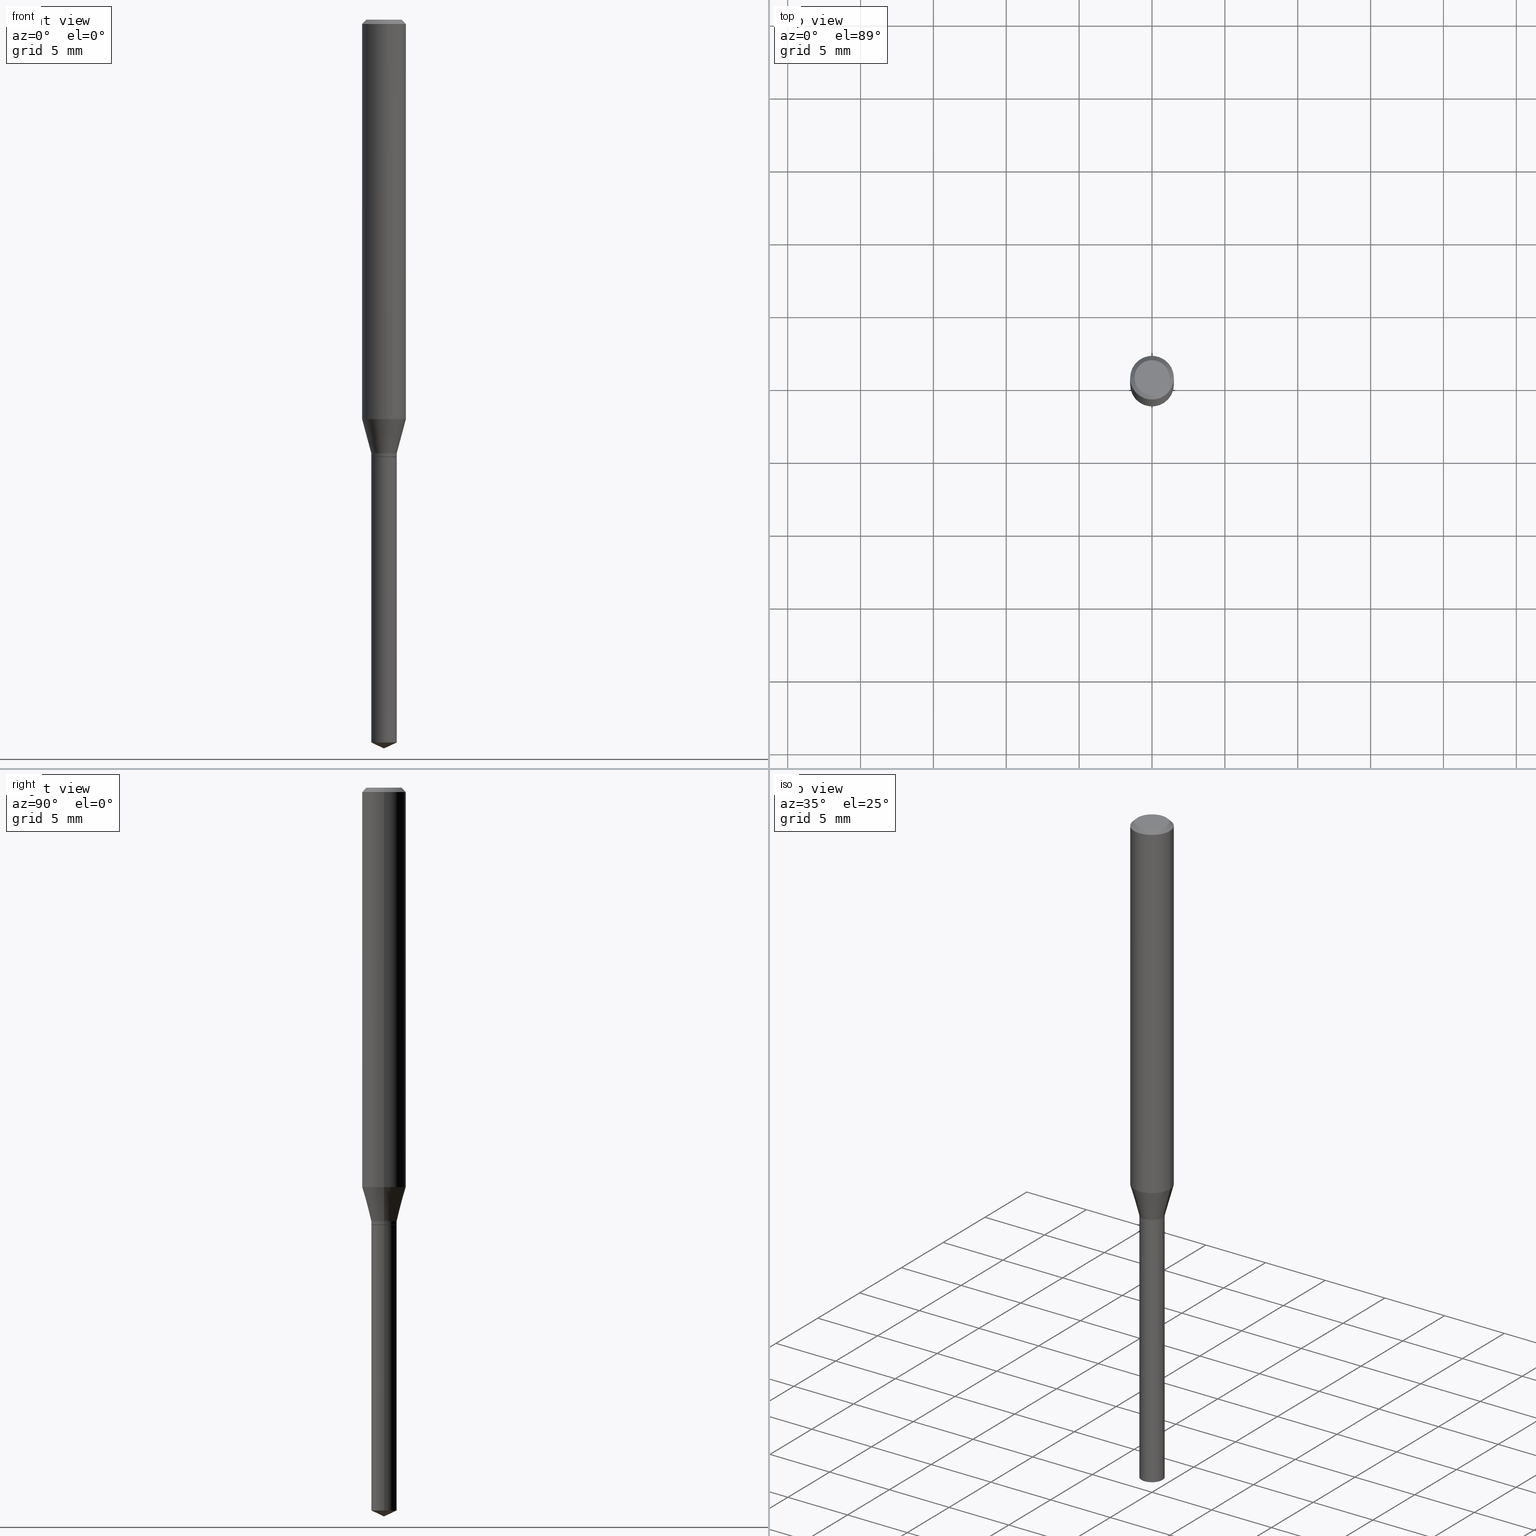
[diagram: canonical four-view strip — front | top / right | iso, engineering-drawing reading convention]
A machine part, canonical four-view strip (front | top / right | iso — engineering-drawing reading convention). The complete STEP part file that produces these views, byte-faithful:
ISO-10303-21;
HEADER;
FILE_DESCRIPTION (( 'STEP AP203' ),
    '1' );
FILE_NAME ('08177.STEP',
    '2024-04-24T13:43:20',
    ( '' ),
    ( '' ),
    'SwSTEP 2.0',
    'SolidWorks 2023',
    '' );
FILE_SCHEMA (( 'CONFIG_CONTROL_DESIGN' ));
ENDSEC;

DATA;
#1 = DIRECTION ( 'NONE',  ( -2.445468806185136597E-29, 3.491481338843145583E-15, 1.000000000000000000 ) ) ;
#2 = DIRECTION ( 'NONE',  ( 1.000000000000000000, -6.982962677686265133E-15, 0.000000000000000000 ) ) ;
#3 = DIRECTION ( 'NONE',  ( -1.000000000000000000, 6.982962677686266711E-15, 0.000000000000000000 ) ) ;
#4 = ADVANCED_FACE ( 'NONE', ( #274 ), #212, .T. ) ;
#5 = ORIENTED_EDGE ( 'NONE', *, *, #249, .F. ) ;
#6 = CARTESIAN_POINT ( 'NONE',  ( 0.03445000000000000839, -4.330135156433267846E-15, -1.171299999999999786 ) ) ;
#7 = CARTESIAN_POINT ( 'NONE',  ( 0.04724000000000000421, -3.852183633974369345E-16, -3.380025165621689721E-19 ) ) ;
#8 = ORIENTED_EDGE ( 'NONE', *, *, #97, .F. ) ;
#9 = CIRCLE ( 'NONE', #428, 0.03445000000000000145 ) ;
#10 = AXIS2_PLACEMENT_3D ( 'NONE', #110, #330, #488 ) ;
#11 = EDGE_LOOP ( 'NONE', ( #8, #378, #426, #129 ) ) ;
#12 = CC_DESIGN_PERSON_AND_ORGANIZATION_ASSIGNMENT ( #418, #235, ( #454 ) ) ;
#13 = CARTESIAN_POINT ( 'NONE',  ( -0.05905000000000006771, 4.195754854663396409E-16, -2.904631170795525045E-30 ) ) ;
#14 = AXIS2_PLACEMENT_3D ( 'NONE', #117, #396, #359 ) ;
#15 = EDGE_LOOP ( 'NONE', ( #466, #126, #25, #424 ) ) ;
#16 = PERSON_AND_ORGANIZATION ( #260, #104 ) ;
#17 = CARTESIAN_POINT ( 'NONE',  ( 0.05905000000000013710, -4.181368548848415927E-15, -1.079491550133805156 ) ) ;
#18 = DATE_AND_TIME ( #232, #328 ) ;
#19 = APPROVAL_PERSON_ORGANIZATION ( #463, #308, #349 ) ;
#20 = CC_DESIGN_APPROVAL ( #290, ( #329 ) ) ;
#21 = EDGE_LOOP ( 'NONE', ( #421, #357, #277, #172 ) ) ;
#22 = DATE_AND_TIME ( #203, #195 ) ;
#23 = PRODUCT_DEFINITION_SHAPE ( 'NONE', 'NONE',  #108 ) ;
#24 = EDGE_CURVE ( 'NONE', #58, #314, #431, .T. ) ;
#25 = ORIENTED_EDGE ( 'NONE', *, *, #376, .F. ) ;
#26 = VERTEX_POINT ( 'NONE', #134 ) ;
#27 = EDGE_CURVE ( 'NONE', #223, #226, #138, .T. ) ;
#28 = VERTEX_POINT ( 'NONE', #64 ) ;
#29 = EDGE_CURVE ( 'NONE', #28, #132, #239, .T. ) ;
#30 = DIRECTION ( 'NONE',  ( -2.445468806185136877E-29, 3.491481338843145188E-15, 1.000000000000000000 ) ) ;
#31 = PLANE ( 'NONE',  #460 ) ;
#32 = CARTESIAN_POINT ( 'NONE',  ( 0.03445000000000000145, -7.059201620864807415E-15, -1.952935701176560679 ) ) ;
#33 = DIRECTION ( 'NONE',  ( 1.000000000000000000, -6.982962677686266711E-15, 4.876176775795936353E-29 ) ) ;
#34 = EDGE_CURVE ( 'NONE', #165, #26, #266, .T. ) ;
#35 = AXIS2_PLACEMENT_3D ( 'NONE', #489, #111, #332 ) ;
#36 = DIRECTION ( 'NONE',  ( 2.445468806185136597E-29, -3.491481338843145583E-15, -1.000000000000000000 ) ) ;
#37 = EDGE_CURVE ( 'NONE', #226, #417, #107, .T. ) ;
#38 = FACE_OUTER_BOUND ( 'NONE', #447, .T. ) ;
#39 = DIRECTION ( 'NONE',  ( 1.000000000000000000, -6.982962677686265922E-15, 0.000000000000000000 ) ) ;
#40 =( NAMED_UNIT ( * ) SI_UNIT ( $, .STERADIAN. ) SOLID_ANGLE_UNIT ( ) );
#41 = DIRECTION ( 'NONE',  ( -0.7071067811864326647, 7.493145998869937642E-15, 0.7071067811866621478 ) ) ;
#42 = DIRECTION ( 'NONE',  ( 1.000000000000000000, 0.000000000000000000, 0.000000000000000000 ) ) ;
#43 = FACE_OUTER_BOUND ( 'NONE', #462, .T. ) ;
#44 = ORIENTED_EDGE ( 'NONE', *, *, #288, .T. ) ;
#45 = LENGTH_MEASURE_WITH_UNIT ( LENGTH_MEASURE( 0.02539999999999999897 ), #87 );
#46 = CARTESIAN_POINT ( 'NONE',  ( 2.639862912392659236E-29, -3.769024602731041007E-15, -1.079491550133805156 ) ) ;
#47 = AXIS2_PLACEMENT_3D ( 'NONE', #191, #400, #78 ) ;
#48 = VERTEX_POINT ( 'NONE', #17 ) ;
#49 = EDGE_CURVE ( 'NONE', #472, #229, #144, .T. ) ;
#50 = ORIENTED_EDGE ( 'NONE', *, *, #343, .F. ) ;
#51 =( CONVERSION_BASED_UNIT ( 'INCH', #45 ) LENGTH_UNIT ( ) NAMED_UNIT ( #465 ) );
#52 = AXIS2_PLACEMENT_3D ( 'NONE', #68, #436, #285 ) ;
#53 = ORIENTED_EDGE ( 'NONE', *, *, #65, .T. ) ;
#54 = COORDINATED_UNIVERSAL_TIME_OFFSET ( 5, 0, .BEHIND. ) ;
#55 = CLOSED_SHELL ( 'NONE', ( #70, #219, #112, #88, #155 ) ) ;
#56 = ORIENTED_EDGE ( 'NONE', *, *, #27, .T. ) ;
#57 = CALENDAR_DATE ( 2024, 24, 4 ) ;
#58 = VERTEX_POINT ( 'NONE', #406 ) ;
#59 = APPROVAL_ROLE ( '' ) ;
#60 = AXIS2_PLACEMENT_3D ( 'NONE', #190, #185, #160 ) ;
#61 = DIRECTION ( 'NONE',  ( 1.000000000000000000, -6.982962677686266711E-15, 0.000000000000000000 ) ) ;
#62 = ORIENTED_EDGE ( 'NONE', *, *, #37, .F. ) ;
#63 = AXIS2_PLACEMENT_3D ( 'NONE', #391, #234, #61 ) ;
#64 = CARTESIAN_POINT ( 'NONE',  ( 0.03395000000000000795, -4.362605932884510179E-15, -1.181600000000000206 ) ) ;
#65 = EDGE_CURVE ( 'NONE', #205, #26, #367, .T. ) ;
#66 = VECTOR ( 'NONE', #41, 39.37007874015748854 ) ;
#67 = FACE_OUTER_BOUND ( 'NONE', #135, .T. ) ;
#68 = CARTESIAN_POINT ( 'NONE',  ( 0.000000000000000000, 0.000000000000000000, 0.000000000000000000 ) ) ;
#69 = AXIS2_PLACEMENT_3D ( 'NONE', #208, #94, #174 ) ;
#70 = ADVANCED_FACE ( 'NONE', ( #120 ), #211, .T. ) ;
#71 = CARTESIAN_POINT ( 'NONE',  ( 0.03445000000000001533, -4.364351673553931682E-15, -1.181100000000000039 ) ) ;
#72 = VECTOR ( 'NONE', #227, 39.37007874015748854 ) ;
#73 = DIRECTION ( 'NONE',  ( 1.000000000000000000, -6.982962677686264344E-15, 0.000000000000000000 ) ) ;
#74 = CARTESIAN_POINT ( 'NONE',  ( 4.132873053354867254E-48, -5.900647395337818946E-34, -1.690012582823346072E-19 ) ) ;
#75 = LINE ( 'NONE', #334, #419 ) ;
#76 = DIRECTION ( 'NONE',  ( -1.000000000000000000, 6.982962677686265922E-15, -4.876176775795935793E-29 ) ) ;
#77 = ADVANCED_FACE ( 'NONE', ( #292 ), #306, .T. ) ;
#78 = DIRECTION ( 'NONE',  ( 1.000000000000000000, -6.982962677686266711E-15, 4.876185090822587894E-29 ) ) ;
#79 = VERTEX_POINT ( 'NONE', #7 ) ;
#80 = CIRCLE ( 'NONE', #295, 0.03395000000000000795 ) ;
#81 = PLANE ( 'NONE',  #368 ) ;
#82 = ORIENTED_EDGE ( 'NONE', *, *, #326, .T. ) ;
#83 = CARTESIAN_POINT ( 'NONE',  ( 0.000000000000000000, 0.000000000000000000, 0.000000000000000000 ) ) ;
#84 = DIRECTION ( 'NONE',  ( -2.445468806185136597E-29, 3.491481338843145583E-15, 1.000000000000000000 ) ) ;
#85 = CIRCLE ( 'NONE', #206, 0.03445000000000000839 ) ;
#86 = ORIENTED_EDGE ( 'NONE', *, *, #24, .T. ) ;
#87 =( LENGTH_UNIT ( ) NAMED_UNIT ( * ) SI_UNIT ( $, .METRE. ) );
#88 = ADVANCED_FACE ( 'NONE', ( #67 ), #220, .T. ) ;
#89 = CALENDAR_DATE ( 2024, 24, 4 ) ;
#90 =( GEOMETRIC_REPRESENTATION_CONTEXT ( 3 ) GLOBAL_UNCERTAINTY_ASSIGNED_CONTEXT ( ( #221 ) ) GLOBAL_UNIT_ASSIGNED_CONTEXT ( ( #51, #123, #40 ) ) REPRESENTATION_CONTEXT ( 'NONE', 'WORKASPACE' ) );
#91 = MANIFOLD_SOLID_BREP ( 'Body-Move/Copy2[2]', #189 ) ;
#92 = ORIENTED_EDGE ( 'NONE', *, *, #326, .F. ) ;
#93 = APPROVAL_ROLE ( '' ) ;
#94 = DIRECTION ( 'NONE',  ( -2.445468806185136597E-29, 3.491481338843145583E-15, 1.000000000000000000 ) ) ;
#95 = PERSON_AND_ORGANIZATION ( #260, #104 ) ;
#96 = ORIENTED_EDGE ( 'NONE', *, *, #356, .F. ) ;
#97 = EDGE_CURVE ( 'NONE', #79, #205, #446, .T. ) ;
#98 = CIRCLE ( 'NONE', #272, 0.05905000000000013016 ) ;
#99 = ORIENTED_EDGE ( 'NONE', *, *, #321, .F. ) ;
#100 = CC_DESIGN_DATE_AND_TIME_ASSIGNMENT ( #18, #310, ( #108 ) ) ;
#101 = DIRECTION ( 'NONE',  ( 0.9063077870366548217, -4.853149677051449787E-15, 0.4226182617406890052 ) ) ;
#102 = EDGE_LOOP ( 'NONE', ( #197, #82, #56, #279 ) ) ;
#103 = DIRECTION ( 'NONE',  ( 1.000000000000000000, -6.982962677686264344E-15, 0.000000000000000000 ) ) ;
#104 = ORGANIZATION ( 'UNSPECIFIED', 'UNSPECIFIED', '' ) ;
#105 = EDGE_CURVE ( 'NONE', #417, #226, #85, .T. ) ;
#106 = DIRECTION ( 'NONE',  ( 1.000000000000000000, -6.982962677686262766E-15, 0.000000000000000000 ) ) ;
#107 = CIRCLE ( 'NONE', #387, 0.03445000000000000839 ) ;
#108 = PRODUCT_DEFINITION ( 'UNKNOWN', '', #454, #468 ) ;
#109 = CARTESIAN_POINT ( 'NONE',  ( 2.864377612684650340E-29, -4.089572092186975977E-15, -1.171299999999999786 ) ) ;
#110 = CARTESIAN_POINT ( 'NONE',  ( 0.000000000000000000, 0.000000000000000000, 0.000000000000000000 ) ) ;
#111 = DIRECTION ( 'NONE',  ( -2.445468806185136597E-29, 3.491481338843145583E-15, 1.000000000000000000 ) ) ;
#112 = ADVANCED_FACE ( 'NONE', ( #335 ), #430, .T. ) ;
#113 = CIRCLE ( 'NONE', #149, 0.03445000000000000145 ) ;
#114 = DIRECTION ( 'NONE',  ( -2.445468806185136597E-29, 3.491481338843145583E-15, 1.000000000000000000 ) ) ;
#115 = CARTESIAN_POINT ( 'NONE',  ( 4.815128079378533515E-29, -6.874726756182153211E-15, -1.968999999999999861 ) ) ;
#116 = MECHANICAL_CONTEXT ( 'NONE', #199, 'mechanical' ) ;
#117 = CARTESIAN_POINT ( 'NONE',  ( -9.146317137672921654E-28, 1.305851684738629534E-13, 37.40107874015748024 ) ) ;
#118 = ORIENTED_EDGE ( 'NONE', *, *, #180, .F. ) ;
#119 = CARTESIAN_POINT ( 'NONE',  ( -0.03445000000000000839, -3.844790119717621600E-15, -1.171299999999999786 ) ) ;
#120 = FACE_OUTER_BOUND ( 'NONE', #395, .T. ) ;
#121 = ORIENTED_EDGE ( 'NONE', *, *, #432, .F. ) ;
#122 = CIRCLE ( 'NONE', #464, 0.05904999999999999832 ) ;
#123 =( NAMED_UNIT ( * ) PLANE_ANGLE_UNIT ( ) SI_UNIT ( $, .RADIAN. ) );
#124 = CARTESIAN_POINT ( 'NONE',  ( -0.03445000000000000145, -6.573856584149161170E-15, -1.952935701176560679 ) ) ;
#125 = LINE ( 'NONE', #6, #72 ) ;
#126 = ORIENTED_EDGE ( 'NONE', *, *, #194, .T. ) ;
#127 = CYLINDRICAL_SURFACE ( 'NONE', #383, 0.03445000000000001533 ) ;
#128 = ADVANCED_FACE ( 'NONE', ( #43 ), #81, .F. ) ;
#129 = ORIENTED_EDGE ( 'NONE', *, *, #65, .F. ) ;
#130 = DATE_AND_TIME ( #57, #490 ) ;
#131 = SHAPE_DEFINITION_REPRESENTATION ( #23, #423 ) ;
#132 = VERTEX_POINT ( 'NONE', #324 ) ;
#133 = SECURITY_CLASSIFICATION_LEVEL ( 'unclassified' ) ;
#134 = CARTESIAN_POINT ( 'NONE',  ( -0.05904999999999999832, -1.485554013205049086E-15, -0.01181000000000007044 ) ) ;
#135 = EDGE_LOOP ( 'NONE', ( #50, #450, #336, #475 ) ) ;
#136 = LOCAL_TIME ( 9, 43, 20.00000000000000000, #171 ) ;
#137 = CARTESIAN_POINT ( 'NONE',  ( 2.889565941388358239E-29, -4.125534349977062106E-15, -1.181600000000000206 ) ) ;
#138 = LINE ( 'NONE', #322, #315 ) ;
#139 = CYLINDRICAL_SURFACE ( 'NONE', #52, 0.03445000000000001533 ) ;
#140 = CIRCLE ( 'NONE', #35, 0.05905000000000013016 ) ;
#141 = CARTESIAN_POINT ( 'NONE',  ( 0.03445000000000000839, -4.330135156433267846E-15, -1.171299999999999786 ) ) ;
#142 = AXIS2_PLACEMENT_3D ( 'NONE', #109, #247, #73 ) ;
#143 = FACE_OUTER_BOUND ( 'NONE', #427, .T. ) ;
#144 = CIRCLE ( 'NONE', #471, 0.03445000000000000145 ) ;
#145 = CARTESIAN_POINT ( 'NONE',  ( -0.05905000000000013710, -3.349449117264700725E-15, -1.079491550133805156 ) ) ;
#146 = DIRECTION ( 'NONE',  ( 2.445468806185136597E-29, -3.491481338843145583E-15, -1.000000000000000000 ) ) ;
#147 = APPROVAL ( #201, 'UNSPECIFIED' ) ;
#148 = DIRECTION ( 'NONE',  ( -0.9063077870366548217, 7.915267918739013053E-15, 0.4226182617406890052 ) ) ;
#149 = AXIS2_PLACEMENT_3D ( 'NONE', #181, #114, #250 ) ;
#150 = DIRECTION ( 'NONE',  ( 1.000000000000000000, -6.982962677686267499E-15, 4.876176775795935793E-29 ) ) ;
#151 = CARTESIAN_POINT ( 'NONE',  ( 2.889565941388358239E-29, -4.125534349977062106E-15, -1.181600000000000206 ) ) ;
#152 = ORIENTED_EDGE ( 'NONE', *, *, #164, .T. ) ;
#153 = APPLICATION_PROTOCOL_DEFINITION ( 'international standard', 'config_control_design', 1994, #199 ) ;
#154 = CARTESIAN_POINT ( 'NONE',  ( 2.889565941388358239E-29, -4.125534349977062106E-15, -1.181600000000000206 ) ) ;
#155 = ADVANCED_FACE ( 'NONE', ( #410 ), #31, .F. ) ;
#156 = ORIENTED_EDGE ( 'NONE', *, *, #29, .F. ) ;
#157 = LINE ( 'NONE', #119, #312 ) ;
#158 = DIRECTION ( 'NONE',  ( 2.438088387897960049E-29, -3.491481338843145188E-15, -1.000000000000000000 ) ) ;
#159 = CC_DESIGN_PERSON_AND_ORGANIZATION_ASSIGNMENT ( #95, #352, ( #454 ) ) ;
#160 = DIRECTION ( 'NONE',  ( 1.000000000000000000, -6.982962677686265922E-15, 4.876176775795935793E-29 ) ) ;
#161 = ORIENTED_EDGE ( 'NONE', *, *, #27, .F. ) ;
#162 = EDGE_LOOP ( 'NONE', ( #156, #271 ) ) ;
#163 = PERSON_AND_ORGANIZATION_ROLE ( 'creator' ) ;
#164 = EDGE_CURVE ( 'NONE', #28, #223, #182, .T. ) ;
#165 = VERTEX_POINT ( 'NONE', #218 ) ;
#166 = PERSON_AND_ORGANIZATION ( #260, #104 ) ;
#167 = AXIS2_PLACEMENT_3D ( 'NONE', #380, #84, #225 ) ;
#168 = ORIENTED_EDGE ( 'NONE', *, *, #187, .F. ) ;
#169 = ORIENTED_EDGE ( 'NONE', *, *, #194, .F. ) ;
#170 = ADVANCED_FACE ( 'NONE', ( #481 ), #353, .T. ) ;
#171 = COORDINATED_UNIVERSAL_TIME_OFFSET ( 5, 0, .BEHIND. ) ;
#172 = ORIENTED_EDGE ( 'NONE', *, *, #252, .F. ) ;
#173 = EDGE_CURVE ( 'NONE', #256, #48, #140, .T. ) ;
#174 = DIRECTION ( 'NONE',  ( 1.000000000000000000, -6.982962677686263555E-15, 0.000000000000000000 ) ) ;
#175 = CARTESIAN_POINT ( 'NONE',  ( 2.888343206985265437E-29, -4.123788609307639813E-15, -1.181100000000000039 ) ) ;
#176 = CARTESIAN_POINT ( 'NONE',  ( 2.888098660104663766E-31, -4.123439461173779647E-17, -0.01181000000000007044 ) ) ;
#177 = FACE_OUTER_BOUND ( 'NONE', #21, .T. ) ;
#178 = VECTOR ( 'NONE', #439, 39.37007874015748854 ) ;
#179 = FACE_OUTER_BOUND ( 'NONE', #373, .T. ) ;
#180 = EDGE_CURVE ( 'NONE', #58, #207, #297, .T. ) ;
#181 = CARTESIAN_POINT ( 'NONE',  ( 4.775843337712576806E-29, -6.818638556618515546E-15, -1.952935701176560679 ) ) ;
#182 = LINE ( 'NONE', #331, #178 ) ;
#183 = DIRECTION ( 'NONE',  ( 2.438088387897960049E-29, -3.491481338843145188E-15, -1.000000000000000000 ) ) ;
#184 = CIRCLE ( 'NONE', #351, 0.03445000000000001533 ) ;
#185 = DIRECTION ( 'NONE',  ( -2.438088387897960049E-29, 3.491481338843145188E-15, 1.000000000000000000 ) ) ;
#186 = DIRECTION ( 'NONE',  ( -1.000000000000000000, 6.982962677686265922E-15, -4.876176775795935793E-29 ) ) ;
#187 = EDGE_CURVE ( 'NONE', #48, #256, #98, .T. ) ;
#188 = ORIENTED_EDGE ( 'NONE', *, *, #487, .T. ) ;
#189 = CLOSED_SHELL ( 'NONE', ( #4, #77, #394, #338, #282, #470, #246, #268, #228, #128, #408, #170 ) ) ;
#190 = CARTESIAN_POINT ( 'NONE',  ( -4.301196953650421114E-30, -8.879513126580439463E-15, -1.181600000000000206 ) ) ;
#191 = CARTESIAN_POINT ( 'NONE',  ( 8.265746106709734507E-48, -1.180129479067563789E-33, -3.380025165646692144E-19 ) ) ;
#192 = EDGE_LOOP ( 'NONE', ( #386, #393, #53, #384 ) ) ;
#193 = AXIS2_PLACEMENT_3D ( 'NONE', #364, #36, #486 ) ;
#194 = EDGE_CURVE ( 'NONE', #132, #415, #403, .T. ) ;
#195 = LOCAL_TIME ( 9, 43, 20.00000000000000000, #313 ) ;
#196 = PLANE ( 'NONE',  #60 ) ;
#197 = ORIENTED_EDGE ( 'NONE', *, *, #487, .F. ) ;
#198 = APPROVAL_DATE_TIME ( #130, #308 ) ;
#199 = APPLICATION_CONTEXT ( 'configuration controlled 3d designs of mechanical parts and assemblies' ) ;
#200 = EDGE_LOOP ( 'NONE', ( #269, #339, #318, #99 ) ) ;
#201 = APPROVAL_STATUS ( 'not_yet_approved' ) ;
#202 = DIRECTION ( 'NONE',  ( 1.000000000000000000, -6.982962677686263555E-15, 0.000000000000000000 ) ) ;
#203 = CALENDAR_DATE ( 2024, 24, 4 ) ;
#204 = EDGE_CURVE ( 'NONE', #132, #28, #80, .T. ) ;
#205 = VERTEX_POINT ( 'NONE', #414 ) ;
#206 = AXIS2_PLACEMENT_3D ( 'NONE', #445, #222, #371 ) ;
#207 = VERTEX_POINT ( 'NONE', #124 ) ;
#208 = CARTESIAN_POINT ( 'NONE',  ( 2.889565941388358239E-29, -4.125534349977062106E-15, -1.181600000000000206 ) ) ;
#209 = CARTESIAN_POINT ( 'NONE',  ( 0.03445000000000000145, -4.366097414223353186E-15, -1.181600000000000206 ) ) ;
#210 = AXIS2_PLACEMENT_3D ( 'NONE', #370, #340, #42 ) ;
#211 = CYLINDRICAL_SURFACE ( 'NONE', #253, 0.03445000000000000145 ) ;
#212 = CONICAL_SURFACE ( 'NONE', #346, 0.03395000000000000795, 0.7853981633972860754 ) ;
#213 = CYLINDRICAL_SURFACE ( 'NONE', #287, 0.05905000000000006771 ) ;
#214 = DIRECTION ( 'NONE',  ( -2.445468806185136597E-29, 3.491481338843145583E-15, 1.000000000000000000 ) ) ;
#215 = AXIS2_PLACEMENT_3D ( 'NONE', #175, #399, #402 ) ;
#216 = AXIS2_PLACEMENT_3D ( 'NONE', #325, #214, #103 ) ;
#217 = LINE ( 'NONE', #366, #243 ) ;
#218 = CARTESIAN_POINT ( 'NONE',  ( 0.05904999999999999832, -4.535783407291118600E-16, -0.01181000000000007044 ) ) ;
#219 = ADVANCED_FACE ( 'NONE', ( #263 ), #365, .T. ) ;
#220 = CYLINDRICAL_SURFACE ( 'NONE', #233, 0.03445000000000000145 ) ;
#221 = UNCERTAINTY_MEASURE_WITH_UNIT (LENGTH_MEASURE( 1.000000000000000082E-05 ), #51, 'distance_accuracy_value', 'NONE');
#222 = DIRECTION ( 'NONE',  ( -2.445468806185136597E-29, 3.491481338843145583E-15, 1.000000000000000000 ) ) ;
#223 = VERTEX_POINT ( 'NONE', #71 ) ;
#224 = CARTESIAN_POINT ( 'NONE',  ( -3.819384814789268933E-30, -8.810514885991131516E-15, -1.181599999999999984 ) ) ;
#225 = DIRECTION ( 'NONE',  ( 1.000000000000000000, -6.982962677686267499E-15, 0.000000000000000000 ) ) ;
#226 = VERTEX_POINT ( 'NONE', #141 ) ;
#227 = DIRECTION ( 'NONE',  ( 0.2588190451025211281, 1.565188264969622954E-15, 0.9659258262890679791 ) ) ;
#228 = ADVANCED_FACE ( 'NONE', ( #482 ), #434, .T. ) ;
#229 = VERTEX_POINT ( 'NONE', #209 ) ;
#230 = VECTOR ( 'NONE', #270, 39.37007874015748143 ) ;
#231 = DATE_AND_TIME ( #89, #320 ) ;
#232 = CALENDAR_DATE ( 2024, 24, 4 ) ;
#233 = AXIS2_PLACEMENT_3D ( 'NONE', #294, #337, #39 ) ;
#234 = DIRECTION ( 'NONE',  ( -2.445468806185136597E-29, 3.491481338843145583E-15, 1.000000000000000000 ) ) ;
#235 = PERSON_AND_ORGANIZATION_ROLE ( 'creator' ) ;
#236 = ORIENTED_EDGE ( 'NONE', *, *, #451, .T. ) ;
#237 = APPROVAL_PERSON_ORGANIZATION ( #166, #147, #59 ) ;
#238 = EDGE_LOOP ( 'NONE', ( #381, #316, #5 ) ) ;
#239 = CIRCLE ( 'NONE', #69, 0.03395000000000000795 ) ;
#240 = ORIENTED_EDGE ( 'NONE', *, *, #401, .T. ) ;
#241 = DIRECTION ( 'NONE',  ( -0.7071067811865453523, 2.468850131082234184E-15, -0.7071067811865496822 ) ) ;
#242 = CARTESIAN_POINT ( 'NONE',  ( 4.775843337712576806E-29, -6.818638556618515546E-15, -1.952935701176560679 ) ) ;
#243 = VECTOR ( 'NONE', #360, 39.37007874015748143 ) ;
#244 = CARTESIAN_POINT ( 'NONE',  ( 2.888343206985265437E-29, -4.123788609307639813E-15, -1.181100000000000039 ) ) ;
#245 = AXIS2_PLACEMENT_3D ( 'NONE', #176, #146, #3 ) ;
#246 = ADVANCED_FACE ( 'NONE', ( #179 ), #474, .T. ) ;
#247 = DIRECTION ( 'NONE',  ( -2.445468806185136597E-29, 3.491481338843145583E-15, 1.000000000000000000 ) ) ;
#248 = DIRECTION ( 'NONE',  ( 1.000000000000000000, -6.982962677686265922E-15, 0.000000000000000000 ) ) ;
#249 = EDGE_CURVE ( 'NONE', #314, #207, #9, .T. ) ;
#250 = DIRECTION ( 'NONE',  ( 1.000000000000000000, -6.982962677686280121E-15, 0.000000000000000000 ) ) ;
#251 = DIRECTION ( 'NONE',  ( -2.445468806185136597E-29, 3.491481338843145583E-15, 1.000000000000000000 ) ) ;
#252 = EDGE_CURVE ( 'NONE', #48, #165, #358, .T. ) ;
#253 = AXIS2_PLACEMENT_3D ( 'NONE', #443, #258, #248 ) ;
#254 = APPLICATION_PROTOCOL_DEFINITION ( 'international standard', 'config_control_design', 1994, #361 ) ;
#255 = DIRECTION ( 'NONE',  ( -2.445468806185136597E-29, 3.491481338843145583E-15, 1.000000000000000000 ) ) ;
#256 = VERTEX_POINT ( 'NONE', #145 ) ;
#257 = LINE ( 'NONE', #13, #333 ) ;
#258 = DIRECTION ( 'NONE',  ( -2.445468806185136597E-29, 3.491481338843145583E-15, 1.000000000000000000 ) ) ;
#259 = ORIENTED_EDGE ( 'NONE', *, *, #204, .T. ) ;
#260 = PERSON ( 'UNSPECIFIED', 'UNSPECIFIED', 'UNSPECIFIED', ('UNSPECIFIED'), ('UNSPECIFIED'), ('UNSPECIFIED') ) ;
#261 = CC_DESIGN_APPROVAL ( #147, ( #454 ) ) ;
#262 = CARTESIAN_POINT ( 'NONE',  ( -0.03445000000000001533, -3.861898378277953913E-15, -1.181100000000000039 ) ) ;
#263 = FACE_OUTER_BOUND ( 'NONE', #238, .T. ) ;
#264 = AXIS2_PLACEMENT_3D ( 'NONE', #154, #255, #375 ) ;
#265 = ORIENTED_EDGE ( 'NONE', *, *, #343, .T. ) ;
#266 = CIRCLE ( 'NONE', #63, 0.05904999999999999832 ) ;
#267 = DIRECTION ( 'NONE',  ( -2.445468806185136877E-29, 3.491481338843145188E-15, 1.000000000000000000 ) ) ;
#268 = ADVANCED_FACE ( 'NONE', ( #286 ), #484, .T. ) ;
#269 = ORIENTED_EDGE ( 'NONE', *, *, #485, .F. ) ;
#270 = DIRECTION ( 'NONE',  ( 0.7071067811865453523, -7.319954787623248157E-15, -0.7071067811865496822 ) ) ;
#271 = ORIENTED_EDGE ( 'NONE', *, *, #204, .F. ) ;
#272 = AXIS2_PLACEMENT_3D ( 'NONE', #46, #251, #2 ) ;
#273 = APPROVAL_DATE_TIME ( #22, #147 ) ;
#274 = FACE_OUTER_BOUND ( 'NONE', #15, .T. ) ;
#275 = PERSON_AND_ORGANIZATION_ROLE ( 'classification_officer' ) ;
#276 = DATE_AND_TIME ( #473, #136 ) ;
#277 = ORIENTED_EDGE ( 'NONE', *, *, #34, .F. ) ;
#278 = CC_DESIGN_PERSON_AND_ORGANIZATION_ASSIGNMENT ( #16, #275, ( #329 ) ) ;
#279 = ORIENTED_EDGE ( 'NONE', *, *, #105, .F. ) ;
#280 = CONICAL_SURFACE ( 'NONE', #142, 0.03445000000000000839, 0.2617993877991498519 ) ;
#281 = CC_DESIGN_SECURITY_CLASSIFICATION ( #329, ( #454 ) ) ;
#282 = ADVANCED_FACE ( 'NONE', ( #143 ), #139, .T. ) ;
#283 = ORIENTED_EDGE ( 'NONE', *, *, #37, .T. ) ;
#284 = DIRECTION ( 'NONE',  ( -2.445468806185136597E-29, 3.491481338843145583E-15, 1.000000000000000000 ) ) ;
#285 = DIRECTION ( 'NONE',  ( 1.000000000000000000, -6.982962677686267499E-15, 4.876176775795935793E-29 ) ) ;
#286 = FACE_OUTER_BOUND ( 'NONE', #200, .T. ) ;
#287 = AXIS2_PLACEMENT_3D ( 'NONE', #323, #362, #33 ) ;
#288 = EDGE_CURVE ( 'NONE', #205, #79, #397, .T. ) ;
#289 = DIRECTION ( 'NONE',  ( -2.445468806185136597E-29, 3.491481338843145583E-15, 1.000000000000000000 ) ) ;
#290 = APPROVAL ( #422, 'UNSPECIFIED' ) ;
#291 = CARTESIAN_POINT ( 'NONE',  ( 8.265746106709734507E-48, -1.180129479067563789E-33, -3.380025165646692144E-19 ) ) ;
#292 = FACE_OUTER_BOUND ( 'NONE', #11, .T. ) ;
#293 = CARTESIAN_POINT ( 'NONE',  ( 2.888098660104663766E-31, -4.123439461173779647E-17, -0.01181000000000007044 ) ) ;
#294 = CARTESIAN_POINT ( 'NONE',  ( 2.889565941388357118E-29, -4.125534349977060528E-15, -1.181599999999999984 ) ) ;
#295 = AXIS2_PLACEMENT_3D ( 'NONE', #151, #299, #449 ) ;
#296 = DIRECTION ( 'NONE',  ( -2.445468806185136877E-29, 3.491481338843145188E-15, 1.000000000000000000 ) ) ;
#297 = LINE ( 'NONE', #115, #303 ) ;
#298 = EDGE_LOOP ( 'NONE', ( #118, #86, #96 ) ) ;
#299 = DIRECTION ( 'NONE',  ( -2.445468806185136597E-29, 3.491481338843145583E-15, 1.000000000000000000 ) ) ;
#300 = ORIENTED_EDGE ( 'NONE', *, *, #49, .T. ) ;
#301 = CARTESIAN_POINT ( 'NONE',  ( 2.889565941388357678E-29, -4.125534349977061317E-15, -1.181600000000000206 ) ) ;
#302 = CARTESIAN_POINT ( 'NONE',  ( -0.05904999999999999832, 3.711095515056362547E-16, -0.01181000000000007044 ) ) ;
#303 = VECTOR ( 'NONE', #148, 39.37007874015748143 ) ;
#304 = EDGE_LOOP ( 'NONE', ( #455, #300 ) ) ;
#305 = ORIENTED_EDGE ( 'NONE', *, *, #97, .T. ) ;
#306 = CONICAL_SURFACE ( 'NONE', #245, 0.05904999999999999832, 0.7853981633974452814 ) ;
#307 = CARTESIAN_POINT ( 'NONE',  ( -0.03445000000000000839, -3.861898378277953913E-15, -1.171299999999999786 ) ) ;
#308 = APPROVAL ( #388, 'UNSPECIFIED' ) ;
#309 = ORIENTED_EDGE ( 'NONE', *, *, #376, .T. ) ;
#310 = DATE_TIME_ROLE ( 'creation_date' ) ;
#311 = DIRECTION ( 'NONE',  ( -2.445468806185136877E-29, 3.491481338843145188E-15, 1.000000000000000000 ) ) ;
#312 = VECTOR ( 'NONE', #409, 39.37007874015748854 ) ;
#313 = COORDINATED_UNIVERSAL_TIME_OFFSET ( 5, 0, .BEHIND. ) ;
#314 = VERTEX_POINT ( 'NONE', #32 ) ;
#315 = VECTOR ( 'NONE', #311, 39.37007874015748143 ) ;
#316 = ORIENTED_EDGE ( 'NONE', *, *, #180, .T. ) ;
#317 = PRODUCT ( '08177', '08177', '', ( #116 ) ) ;
#318 = ORIENTED_EDGE ( 'NONE', *, *, #252, .T. ) ;
#319 = AXIS2_PLACEMENT_3D ( 'NONE', #291, #437, #433 ) ;
#320 = LOCAL_TIME ( 9, 43, 20.00000000000000000, #425 ) ;
#321 = EDGE_CURVE ( 'NONE', #26, #165, #122, .T. ) ;
#322 = CARTESIAN_POINT ( 'NONE',  ( 0.03445000000000001533, -2.405630642462920172E-16, 1.679842899261700685E-30 ) ) ;
#323 = CARTESIAN_POINT ( 'NONE',  ( 0.000000000000000000, 0.000000000000000000, 0.000000000000000000 ) ) ;
#324 = CARTESIAN_POINT ( 'NONE',  ( -0.03395000000000000795, -3.881655864012396638E-15, -1.181600000000000206 ) ) ;
#325 = CARTESIAN_POINT ( 'NONE',  ( 2.864377612684650340E-29, -4.089572092186975977E-15, -1.171299999999999786 ) ) ;
#326 = EDGE_CURVE ( 'NONE', #415, #223, #184, .T. ) ;
#327 = DIRECTION ( 'NONE',  ( -2.445468806185136597E-29, 3.491481338843145583E-15, 1.000000000000000000 ) ) ;
#328 = LOCAL_TIME ( 9, 43, 20.00000000000000000, #390 ) ;
#329 = SECURITY_CLASSIFICATION ( '', '', #133 ) ;
#330 = DIRECTION ( 'NONE',  ( -2.445468806185136597E-29, 3.491481338843145583E-15, 1.000000000000000000 ) ) ;
#331 = CARTESIAN_POINT ( 'NONE',  ( 0.03395000000000000795, -4.362605932884510179E-15, -1.181600000000000206 ) ) ;
#332 = DIRECTION ( 'NONE',  ( 1.000000000000000000, -6.982962677686265133E-15, 0.000000000000000000 ) ) ;
#333 = VECTOR ( 'NONE', #405, 39.37007874015748143 ) ;
#334 = CARTESIAN_POINT ( 'NONE',  ( -0.03445000000000001533, 2.447819724693546230E-16, -1.694573138592815709E-30 ) ) ;
#335 = FACE_OUTER_BOUND ( 'NONE', #298, .T. ) ;
#336 = ORIENTED_EDGE ( 'NONE', *, *, #457, .T. ) ;
#337 = DIRECTION ( 'NONE',  ( -2.445468806185136597E-29, 3.491481338843145583E-15, 1.000000000000000000 ) ) ;
#338 = ADVANCED_FACE ( 'NONE', ( #38 ), #280, .T. ) ;
#339 = ORIENTED_EDGE ( 'NONE', *, *, #173, .T. ) ;
#340 = DIRECTION ( 'NONE',  ( 0.000000000000000000, 0.000000000000000000, 1.000000000000000000 ) ) ;
#341 = VECTOR ( 'NONE', #267, 39.37007874015748143 ) ;
#342 = ORIENTED_EDGE ( 'NONE', *, *, #451, .F. ) ;
#343 = EDGE_CURVE ( 'NONE', #207, #472, #217, .T. ) ;
#344 = DIRECTION ( 'NONE',  ( -2.445468806185136597E-29, 3.491481338843145583E-15, 1.000000000000000000 ) ) ;
#345 = EDGE_LOOP ( 'NONE', ( #169, #259, #152, #92 ) ) ;
#346 = AXIS2_PLACEMENT_3D ( 'NONE', #137, #429, #202 ) ;
#347 = PERSON_AND_ORGANIZATION ( #260, #104 ) ;
#348 = DIRECTION ( 'NONE',  ( 1.000000000000000000, -6.982962677686264344E-15, 0.000000000000000000 ) ) ;
#349 = APPROVAL_ROLE ( '' ) ;
#350 = DIRECTION ( 'NONE',  ( -2.445468806185136597E-29, 3.491481338843145583E-15, 1.000000000000000000 ) ) ;
#351 = AXIS2_PLACEMENT_3D ( 'NONE', #244, #441, #106 ) ;
#352 = PERSON_AND_ORGANIZATION_ROLE ( 'design_supplier' ) ;
#353 = CONICAL_SURFACE ( 'NONE', #264, 0.03395000000000000795, 0.7853981633972860754 ) ;
#354 = ORIENTED_EDGE ( 'NONE', *, *, #173, .F. ) ;
#355 = ORIENTED_EDGE ( 'NONE', *, *, #249, .T. ) ;
#356 = EDGE_CURVE ( 'NONE', #207, #314, #113, .T. ) ;
#357 = ORIENTED_EDGE ( 'NONE', *, *, #485, .T. ) ;
#358 = LINE ( 'NONE', #398, #392 ) ;
#359 = DIRECTION ( 'NONE',  ( 1.000000000000000000, -6.982962677686267499E-15, 0.000000000000000000 ) ) ;
#360 = DIRECTION ( 'NONE',  ( -2.445468806185136877E-29, 3.491481338843145188E-15, 1.000000000000000000 ) ) ;
#361 = APPLICATION_CONTEXT ( 'configuration controlled 3d designs of mechanical parts and assemblies' ) ;
#362 = DIRECTION ( 'NONE',  ( -2.445468806185136597E-29, 3.491481338843145583E-15, 1.000000000000000000 ) ) ;
#363 = CC_DESIGN_PERSON_AND_ORGANIZATION_ASSIGNMENT ( #467, #163, ( #108 ) ) ;
#364 = CARTESIAN_POINT ( 'NONE',  ( 2.888098660104663766E-31, -4.123439461173779647E-17, -0.01181000000000007044 ) ) ;
#365 = CONICAL_SURFACE ( 'NONE', #167, 84.42940631927650941, 1.134464013796325776 ) ;
#366 = CARTESIAN_POINT ( 'NONE',  ( -0.03445000000000000145, -3.880752377507706151E-15, -1.181599999999999984 ) ) ;
#367 = LINE ( 'NONE', #302, #377 ) ;
#368 = AXIS2_PLACEMENT_3D ( 'NONE', #74, #158, #76 ) ;
#369 = CARTESIAN_POINT ( 'NONE',  ( -0.03395000000000000795, -3.884305091186507839E-15, -1.181600000000000206 ) ) ;
#370 = CARTESIAN_POINT ( 'NONE',  ( 0.000000000000000000, 0.000000000000000000, 0.000000000000000000 ) ) ;
#371 = DIRECTION ( 'NONE',  ( 1.000000000000000000, -6.982962677686264344E-15, 0.000000000000000000 ) ) ;
#372 = CIRCLE ( 'NONE', #411, 0.03445000000000000145 ) ;
#373 = EDGE_LOOP ( 'NONE', ( #407, #458, #236, #354 ) ) ;
#374 = PERSON_AND_ORGANIZATION_ROLE ( 'design_owner' ) ;
#375 = DIRECTION ( 'NONE',  ( 1.000000000000000000, -6.982962677686263555E-15, 0.000000000000000000 ) ) ;
#376 = EDGE_CURVE ( 'NONE', #223, #415, #440, .T. ) ;
#377 = VECTOR ( 'NONE', #241, 39.37007874015748143 ) ;
#378 = ORIENTED_EDGE ( 'NONE', *, *, #438, .T. ) ;
#379 = LINE ( 'NONE', #382, #230 ) ;
#380 = CARTESIAN_POINT ( 'NONE',  ( -9.146317137672921654E-28, 1.305851684738629534E-13, 37.40107874015748024 ) ) ;
#381 = ORIENTED_EDGE ( 'NONE', *, *, #24, .F. ) ;
#382 = CARTESIAN_POINT ( 'NONE',  ( 0.05904999999999999832, -4.463468013801466955E-16, -0.01181000000000007044 ) ) ;
#383 = AXIS2_PLACEMENT_3D ( 'NONE', #83, #1, #150 ) ;
#384 = ORIENTED_EDGE ( 'NONE', *, *, #321, .T. ) ;
#385 = DATE_TIME_ROLE ( 'classification_date' ) ;
#386 = ORIENTED_EDGE ( 'NONE', *, *, #438, .F. ) ;
#387 = AXIS2_PLACEMENT_3D ( 'NONE', #477, #284, #348 ) ;
#388 = APPROVAL_STATUS ( 'not_yet_approved' ) ;
#389 = CARTESIAN_POINT ( 'NONE',  ( 2.889565941388357678E-29, -4.125534349977061317E-15, -1.181600000000000206 ) ) ;
#390 = COORDINATED_UNIVERSAL_TIME_OFFSET ( 5, 0, .BEHIND. ) ;
#391 = CARTESIAN_POINT ( 'NONE',  ( 2.888098660104663766E-31, -4.123439461173779647E-17, -0.01181000000000007044 ) ) ;
#392 = VECTOR ( 'NONE', #30, 39.37007874015748143 ) ;
#393 = ORIENTED_EDGE ( 'NONE', *, *, #288, .F. ) ;
#394 = ADVANCED_FACE ( 'NONE', ( #177 ), #213, .T. ) ;
#395 = EDGE_LOOP ( 'NONE', ( #355, #265, #121, #412 ) ) ;
#396 = DIRECTION ( 'NONE',  ( -2.445468806185136597E-29, 3.491481338843145583E-15, 1.000000000000000000 ) ) ;
#397 = CIRCLE ( 'NONE', #319, 0.04724000000000000421 ) ;
#398 = CARTESIAN_POINT ( 'NONE',  ( 0.05905000000000006771, -4.123439461173745257E-16, 2.879382386107503723E-30 ) ) ;
#399 = DIRECTION ( 'NONE',  ( -2.445468806185136597E-29, 3.491481338843145583E-15, 1.000000000000000000 ) ) ;
#400 = DIRECTION ( 'NONE',  ( -2.445468806185136597E-29, 3.491481338843145583E-15, 1.000000000000000000 ) ) ;
#401 = EDGE_CURVE ( 'NONE', #417, #256, #157, .T. ) ;
#402 = DIRECTION ( 'NONE',  ( 1.000000000000000000, -6.982962677686262766E-15, 0.000000000000000000 ) ) ;
#403 = LINE ( 'NONE', #369, #66 ) ;
#404 = MANIFOLD_SOLID_BREP ( 'Body-Move/Copy2[1]', #55 ) ;
#405 = DIRECTION ( 'NONE',  ( -2.445468806185136877E-29, 3.491481338843145188E-15, 1.000000000000000000 ) ) ;
#406 = CARTESIAN_POINT ( 'NONE',  ( 4.815128079378533515E-29, -6.874726756182153211E-15, -1.968999999999999861 ) ) ;
#407 = ORIENTED_EDGE ( 'NONE', *, *, #401, .F. ) ;
#408 = ADVANCED_FACE ( 'NONE', ( #456 ), #196, .F. ) ;
#409 = DIRECTION ( 'NONE',  ( -0.2588190451025211281, 5.211531920934547886E-15, 0.9659258262890679791 ) ) ;
#410 = FACE_OUTER_BOUND ( 'NONE', #304, .T. ) ;
#411 = AXIS2_PLACEMENT_3D ( 'NONE', #301, #344, #413 ) ;
#412 = ORIENTED_EDGE ( 'NONE', *, *, #457, .F. ) ;
#413 = DIRECTION ( 'NONE',  ( 1.000000000000000000, -6.982962677686265922E-15, 0.000000000000000000 ) ) ;
#414 = CARTESIAN_POINT ( 'NONE',  ( -0.04724000000000000421, 3.504923541997677355E-16, -3.380025165670481712E-19 ) ) ;
#415 = VERTEX_POINT ( 'NONE', #262 ) ;
#416 = CARTESIAN_POINT ( 'NONE',  ( 0.03445000000000000145, -4.366097414223352397E-15, -1.181599999999999984 ) ) ;
#417 = VERTEX_POINT ( 'NONE', #307 ) ;
#418 = PERSON_AND_ORGANIZATION ( #260, #104 ) ;
#419 = VECTOR ( 'NONE', #296, 39.37007874015748143 ) ;
#420 = CC_DESIGN_DATE_AND_TIME_ASSIGNMENT ( #231, #385, ( #329 ) ) ;
#421 = ORIENTED_EDGE ( 'NONE', *, *, #187, .T. ) ;
#422 = APPROVAL_STATUS ( 'not_yet_approved' ) ;
#423 = ADVANCED_BREP_SHAPE_REPRESENTATION ( '08177', ( #404, #91, #210 ), #90 ) ;
#424 = ORIENTED_EDGE ( 'NONE', *, *, #164, .F. ) ;
#425 = COORDINATED_UNIVERSAL_TIME_OFFSET ( 5, 0, .BEHIND. ) ;
#426 = ORIENTED_EDGE ( 'NONE', *, *, #34, .T. ) ;
#427 = EDGE_LOOP ( 'NONE', ( #309, #188, #62, #161 ) ) ;
#428 = AXIS2_PLACEMENT_3D ( 'NONE', #242, #327, #479 ) ;
#429 = DIRECTION ( 'NONE',  ( -2.445468806185136597E-29, 3.491481338843145583E-15, 1.000000000000000000 ) ) ;
#430 = CONICAL_SURFACE ( 'NONE', #14, 84.42940631927650941, 1.134464013796325776 ) ;
#431 = LINE ( 'NONE', #469, #478 ) ;
#432 = EDGE_CURVE ( 'NONE', #229, #472, #372, .T. ) ;
#433 = DIRECTION ( 'NONE',  ( 1.000000000000000000, -6.982962677686266711E-15, 4.876185090822587894E-29 ) ) ;
#434 = CONICAL_SURFACE ( 'NONE', #193, 0.05904999999999999832, 0.7853981633974452814 ) ;
#435 = DIRECTION ( 'NONE',  ( 1.000000000000000000, -6.982962677686266711E-15, 0.000000000000000000 ) ) ;
#436 = DIRECTION ( 'NONE',  ( -2.445468806185136597E-29, 3.491481338843145583E-15, 1.000000000000000000 ) ) ;
#437 = DIRECTION ( 'NONE',  ( -2.445468806185136597E-29, 3.491481338843145583E-15, 1.000000000000000000 ) ) ;
#438 = EDGE_CURVE ( 'NONE', #79, #165, #379, .T. ) ;
#439 = DIRECTION ( 'NONE',  ( 0.7071067811864326647, -2.468850131081054837E-15, 0.7071067811866621478 ) ) ;
#440 = CIRCLE ( 'NONE', #215, 0.03445000000000001533 ) ;
#441 = DIRECTION ( 'NONE',  ( -2.445468806185136597E-29, 3.491481338843145583E-15, 1.000000000000000000 ) ) ;
#442 = APPROVAL_PERSON_ORGANIZATION ( #347, #290, #93 ) ;
#443 = CARTESIAN_POINT ( 'NONE',  ( 2.889565941388357118E-29, -4.125534349977060528E-15, -1.181599999999999984 ) ) ;
#444 = CARTESIAN_POINT ( 'NONE',  ( -0.03445000000000000145, -5.227304480828433661E-15, -1.181600000000000206 ) ) ;
#445 = CARTESIAN_POINT ( 'NONE',  ( 2.864377612684650340E-29, -4.089572092186975977E-15, -1.171299999999999786 ) ) ;
#446 = CIRCLE ( 'NONE', #47, 0.04724000000000000421 ) ;
#447 = EDGE_LOOP ( 'NONE', ( #283, #240, #168, #342 ) ) ;
#448 = PERSON_AND_ORGANIZATION ( #260, #104 ) ;
#449 = DIRECTION ( 'NONE',  ( 1.000000000000000000, -6.982962677686263555E-15, 0.000000000000000000 ) ) ;
#450 = ORIENTED_EDGE ( 'NONE', *, *, #356, .T. ) ;
#451 = EDGE_CURVE ( 'NONE', #226, #48, #125, .T. ) ;
#452 = FACE_OUTER_BOUND ( 'NONE', #102, .T. ) ;
#453 = DIRECTION ( 'NONE',  ( 1.000000000000000000, -6.982962677686265922E-15, 0.000000000000000000 ) ) ;
#454 = PRODUCT_DEFINITION_FORMATION_WITH_SPECIFIED_SOURCE ( 'ANY', '', #317, .NOT_KNOWN. ) ;
#455 = ORIENTED_EDGE ( 'NONE', *, *, #432, .T. ) ;
#456 = FACE_OUTER_BOUND ( 'NONE', #162, .T. ) ;
#457 = EDGE_CURVE ( 'NONE', #314, #229, #459, .T. ) ;
#458 = ORIENTED_EDGE ( 'NONE', *, *, #105, .T. ) ;
#459 = LINE ( 'NONE', #416, #341 ) ;
#460 = AXIS2_PLACEMENT_3D ( 'NONE', #224, #183, #186 ) ;
#461 = PRODUCT_RELATED_PRODUCT_CATEGORY ( 'detail', '', ( #317 ) ) ;
#462 = EDGE_LOOP ( 'NONE', ( #44, #305 ) ) ;
#463 = PERSON_AND_ORGANIZATION ( #260, #104 ) ;
#464 = AXIS2_PLACEMENT_3D ( 'NONE', #293, #289, #435 ) ;
#465 = DIMENSIONAL_EXPONENTS ( 1.000000000000000000, 0.000000000000000000, 0.000000000000000000, 0.000000000000000000, 0.000000000000000000, 0.000000000000000000, 0.000000000000000000 ) ;
#466 = ORIENTED_EDGE ( 'NONE', *, *, #29, .T. ) ;
#467 = PERSON_AND_ORGANIZATION ( #260, #104 ) ;
#468 = DESIGN_CONTEXT ( 'detailed design', #361, 'design' ) ;
#469 = CARTESIAN_POINT ( 'NONE',  ( 4.815128079378533515E-29, -6.874726756182153211E-15, -1.968999999999999861 ) ) ;
#470 = ADVANCED_FACE ( 'NONE', ( #452 ), #127, .T. ) ;
#471 = AXIS2_PLACEMENT_3D ( 'NONE', #389, #350, #453 ) ;
#472 = VERTEX_POINT ( 'NONE', #444 ) ;
#473 = CALENDAR_DATE ( 2024, 24, 4 ) ;
#474 = CONICAL_SURFACE ( 'NONE', #216, 0.03445000000000000839, 0.2617993877991498519 ) ;
#475 = ORIENTED_EDGE ( 'NONE', *, *, #49, .F. ) ;
#476 = APPROVAL_DATE_TIME ( #276, #290 ) ;
#477 = CARTESIAN_POINT ( 'NONE',  ( 2.864377612684650340E-29, -4.089572092186975977E-15, -1.171299999999999786 ) ) ;
#478 = VECTOR ( 'NONE', #101, 39.37007874015748143 ) ;
#479 = DIRECTION ( 'NONE',  ( 1.000000000000000000, -6.982962677686280121E-15, 0.000000000000000000 ) ) ;
#480 = CC_DESIGN_PERSON_AND_ORGANIZATION_ASSIGNMENT ( #448, #374, ( #317 ) ) ;
#481 = FACE_OUTER_BOUND ( 'NONE', #345, .T. ) ;
#482 = FACE_OUTER_BOUND ( 'NONE', #192, .T. ) ;
#483 = CC_DESIGN_APPROVAL ( #308, ( #108 ) ) ;
#484 = CYLINDRICAL_SURFACE ( 'NONE', #10, 0.05905000000000006771 ) ;
#485 = EDGE_CURVE ( 'NONE', #256, #26, #257, .T. ) ;
#486 = DIRECTION ( 'NONE',  ( -1.000000000000000000, 6.982962677686266711E-15, 0.000000000000000000 ) ) ;
#487 = EDGE_CURVE ( 'NONE', #415, #417, #75, .T. ) ;
#488 = DIRECTION ( 'NONE',  ( 1.000000000000000000, -6.982962677686266711E-15, 4.876176775795936353E-29 ) ) ;
#489 = CARTESIAN_POINT ( 'NONE',  ( 2.639862912392659236E-29, -3.769024602731041007E-15, -1.079491550133805156 ) ) ;
#490 = LOCAL_TIME ( 9, 43, 20.00000000000000000, #54 ) ;
ENDSEC;
END-ISO-10303-21;
